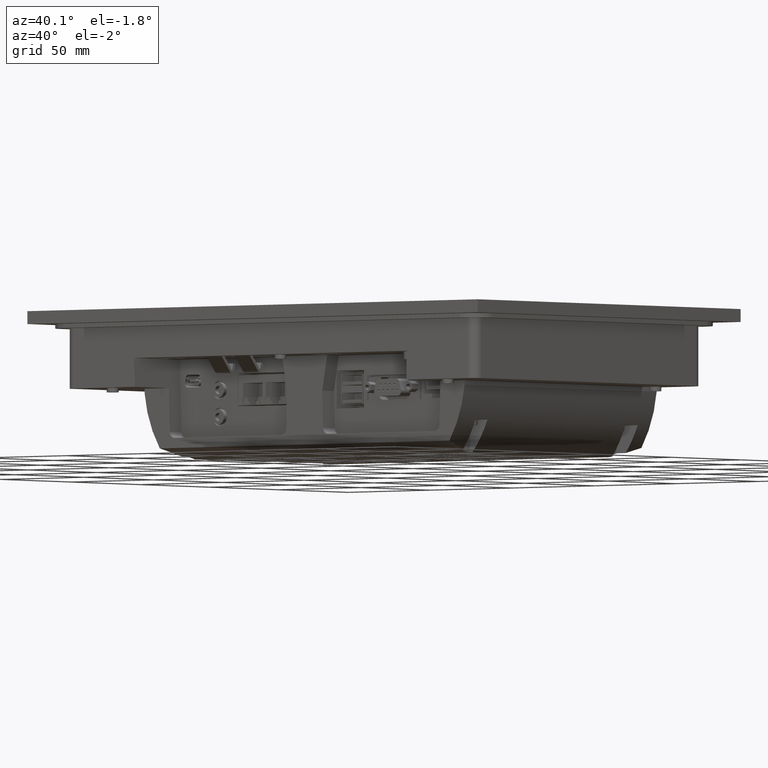
[diagram: clean part render]
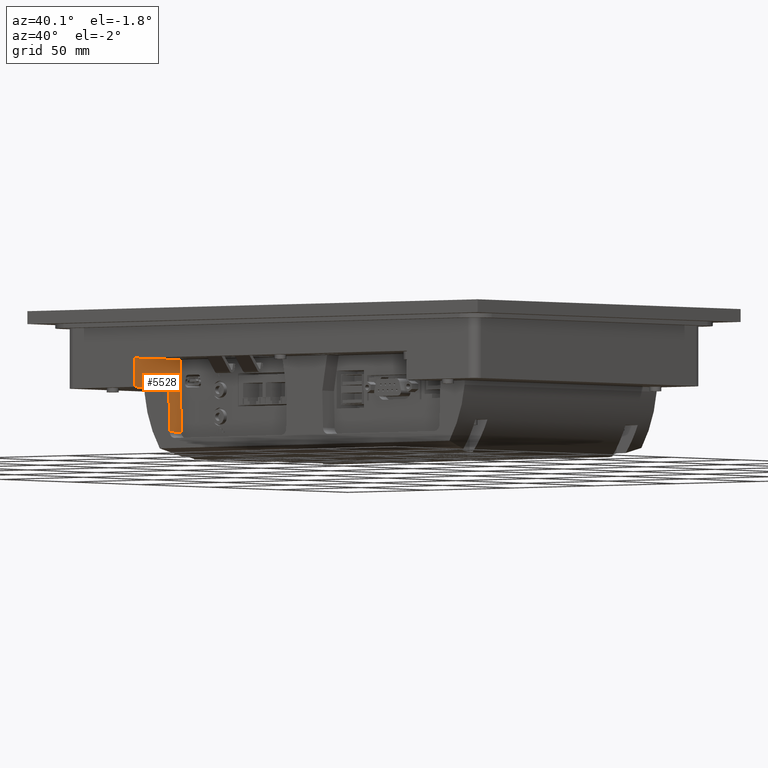
[diagram: same view with one face highlighted and labeled with its STEP entity id]
A machine part, auxiliary view. The second image highlights one B-rep face of the part: STEP entity #5528.
In plain terms, the highlighted planar face has unit normal (-0.9997, 0, -0.0262).
Its self-contained STEP definition (entity closure, byte-faithful):
#5528=ADVANCED_FACE('',(#10584),#8142,.F.);
#8142=PLANE('',#52431);
#10584=FACE_OUTER_BOUND('',#13280,.T.);
#13280=EDGE_LOOP('',(#18795,#18796,#18797,#18798,#18799,#18800));
#18795=ORIENTED_EDGE('',*,*,#34979,.T.);
#18796=ORIENTED_EDGE('',*,*,#35027,.F.);
#18797=ORIENTED_EDGE('',*,*,#34820,.F.);
#18798=ORIENTED_EDGE('',*,*,#35028,.T.);
#18799=ORIENTED_EDGE('',*,*,#35015,.T.);
#18800=ORIENTED_EDGE('',*,*,#34959,.T.);
#29905=VERTEX_POINT('',#69619);
#29906=VERTEX_POINT('',#69620);
#30039=VERTEX_POINT('',#69910);
#30040=VERTEX_POINT('',#69912);
#30056=VERTEX_POINT('',#69948);
#30076=VERTEX_POINT('',#70020);
#34820=EDGE_CURVE('',#29905,#29906,#41082,.T.);
#34959=EDGE_CURVE('',#30040,#30039,#41184,.T.);
#34979=EDGE_CURVE('',#30039,#30056,#41196,.T.);
#35015=EDGE_CURVE('',#30076,#30040,#41220,.T.);
#35027=EDGE_CURVE('',#29906,#30056,#41221,.T.);
#35028=EDGE_CURVE('',#29905,#30076,#41222,.T.);
#41082=LINE('',#69618,#46658);
#41184=LINE('',#69911,#46760);
#41196=LINE('',#69949,#46772);
#41220=LINE('',#70025,#46796);
#41221=LINE('',#70049,#46797);
#41222=LINE('',#70050,#46798);
#46658=VECTOR('',#57310,1.);
#46760=VECTOR('',#57492,1.);
#46772=VECTOR('',#57522,1.);
#46796=VECTOR('',#57584,1.);
#46797=VECTOR('',#57619,1.);
#46798=VECTOR('',#57620,1.);
#52431=AXIS2_PLACEMENT_3D('',#70051,#57621,#57622);
#57310=DIRECTION('',(0.027318362416897,0.0261426811016576,-0.999284877950065));
#57492=DIRECTION('',(-1.49329994054607E-005,0.999657976966521,0.0261520336533901));
#57522=DIRECTION('',(0.027318362416897,0.0261426811016573,-0.999284877950065));
#57584=DIRECTION('',(0.027318362416897,0.0261426811016576,-0.999284877950065));
#57619=DIRECTION('',(1.49329994054606E-005,-0.999657976966521,-0.0261520336533901));
#57620=DIRECTION('',(1.49329994054606E-005,-0.999657976966521,-0.0261520336533901));
#57621=DIRECTION('',(-0.999626783780759,0.000699508412793883,-0.0273094092963548));
#57622=DIRECTION('',(-0.0273094159777684,0.,0.999627028345549));
#69618=CARTESIAN_POINT('',(-83.5186846134772,-61.7623886130859,-25.9550684247395));
#69619=CARTESIAN_POINT('',(-83.5186846134772,-61.7623886130859,-25.9550684247395));
#69620=CARTESIAN_POINT('',(-82.5955941458968,-60.8790245463214,-59.7210142437486));
#69910=CARTESIAN_POINT('',(-83.1512745118293,-69.8089943776183,-39.6097631352299));
#69911=CARTESIAN_POINT('',(-83.1532923453568,65.2705919248803,-36.0759486023946));
#69912=CARTESIAN_POINT('',(-83.1509071743372,-94.3996237762163,-40.2530781313665));
#69948=CARTESIAN_POINT('',(-82.5954686944084,-69.2771083876187,-59.9407163581738));
#69949=CARTESIAN_POINT('',(-82.2688253932198,-68.9645226064269,-71.8890793815585));
#70020=CARTESIAN_POINT('',(-83.5181918244968,-94.7511018529811,-26.8180855353014));
#70025=CARTESIAN_POINT('',(-83.5181918244968,-94.7511018529811,-26.8180855353014));
#70049=CARTESIAN_POINT('',(-82.5955941458968,-60.8790245463214,-59.7210142437486));
#70050=CARTESIAN_POINT('',(-83.5186846134772,-61.7623886130859,-25.9550684247395));
#70051=CARTESIAN_POINT('',(-83.5186846134772,-61.7623886130859,-25.9550684247395));